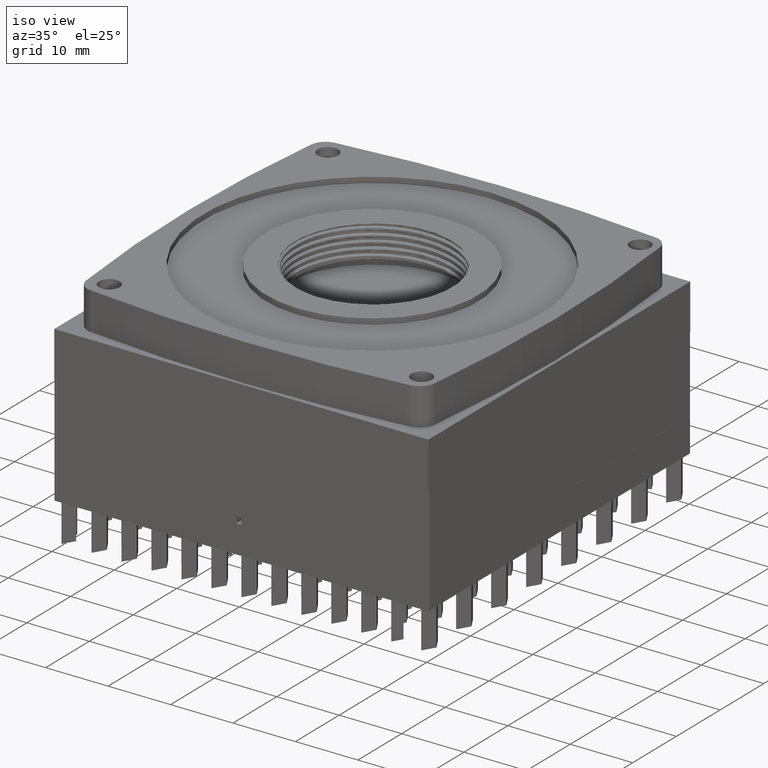
[diagram: clean part render]
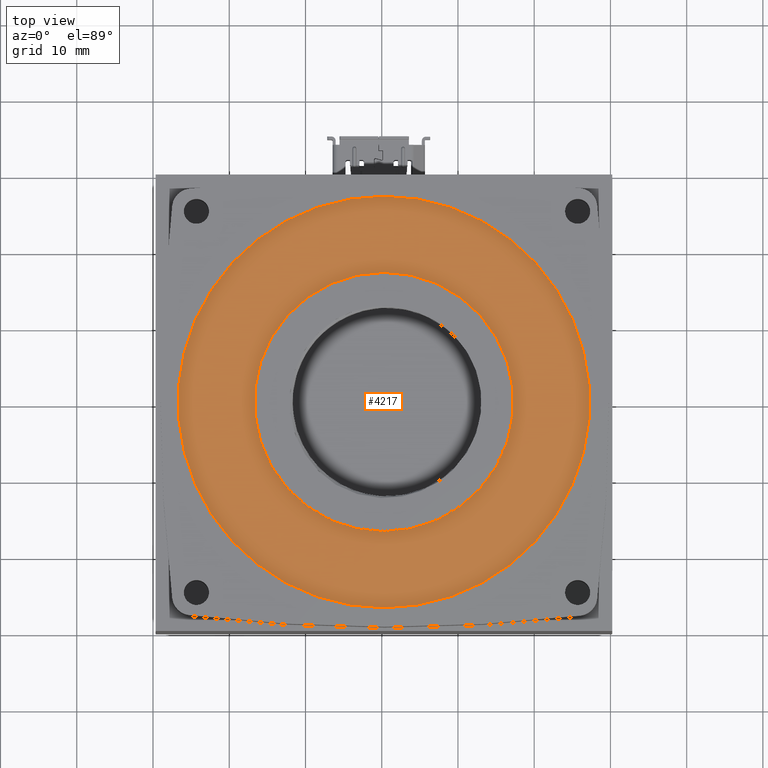
[diagram: tour spotlight — one face highlighted and labeled with its STEP entity id]
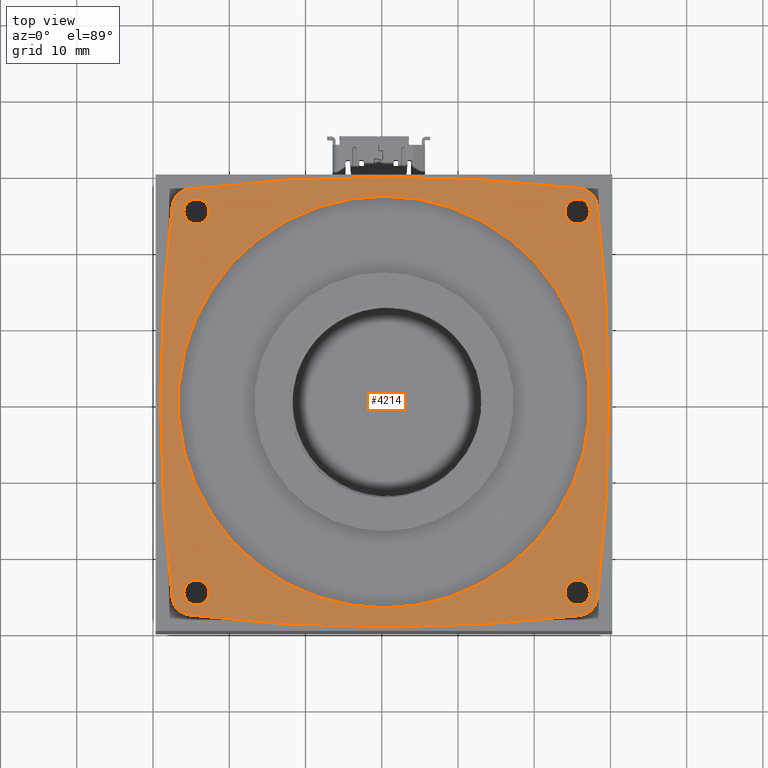
[diagram: tour spotlight — one face highlighted and labeled with its STEP entity id]
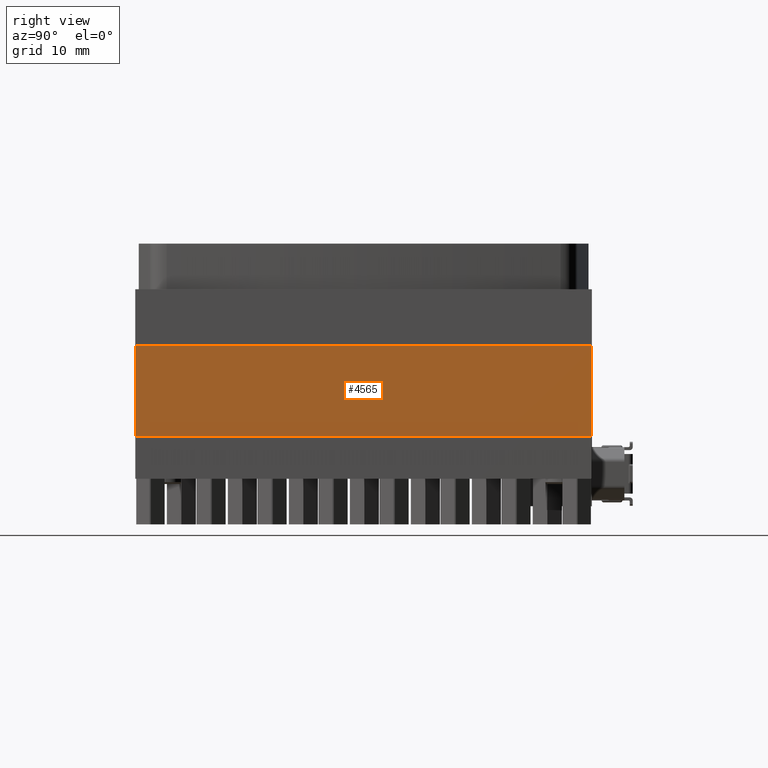
[diagram: tour spotlight — one face highlighted and labeled with its STEP entity id]
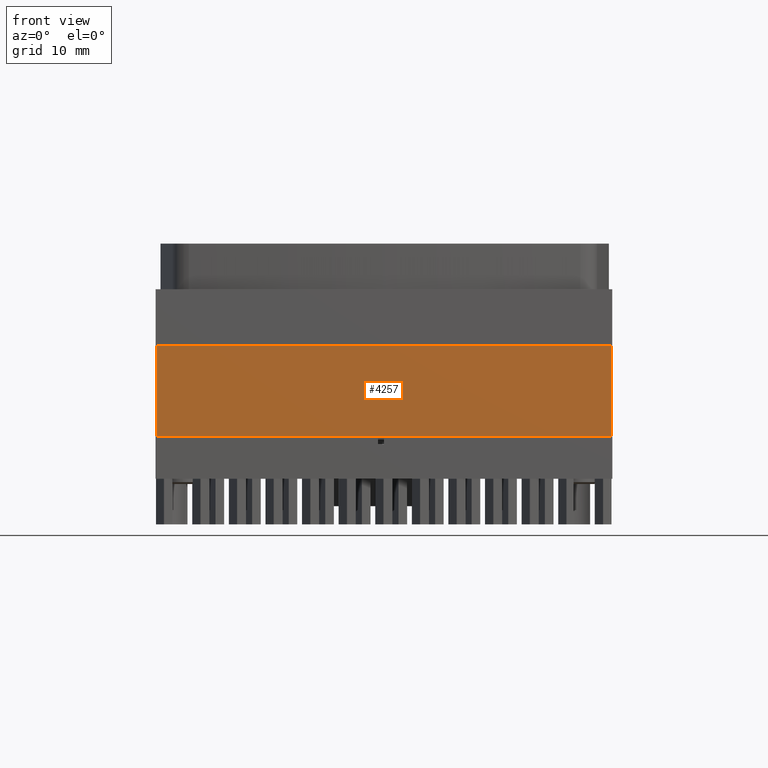
[diagram: tour spotlight — one face highlighted and labeled with its STEP entity id]
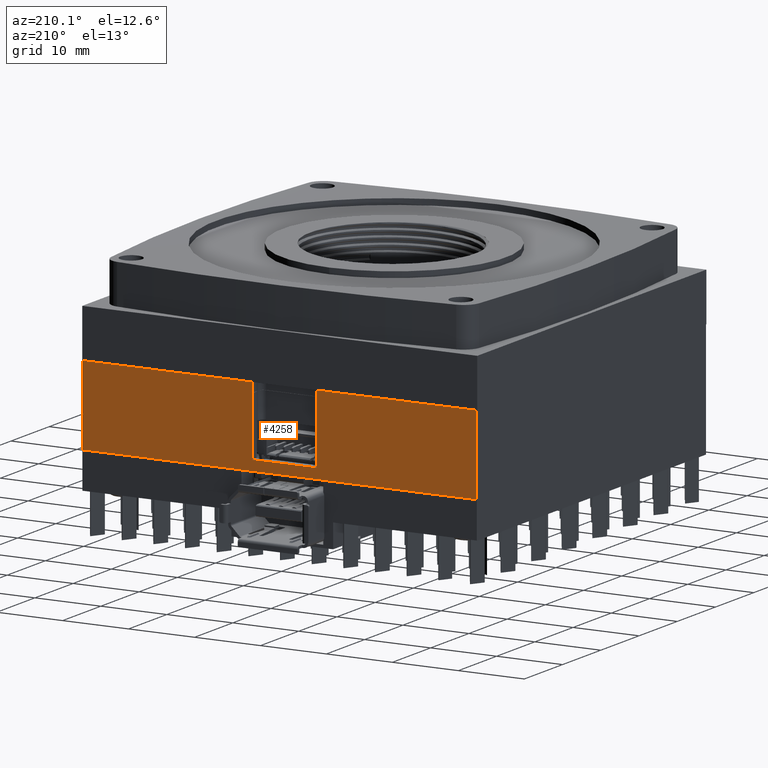
[diagram: tour spotlight — one face highlighted and labeled with its STEP entity id]
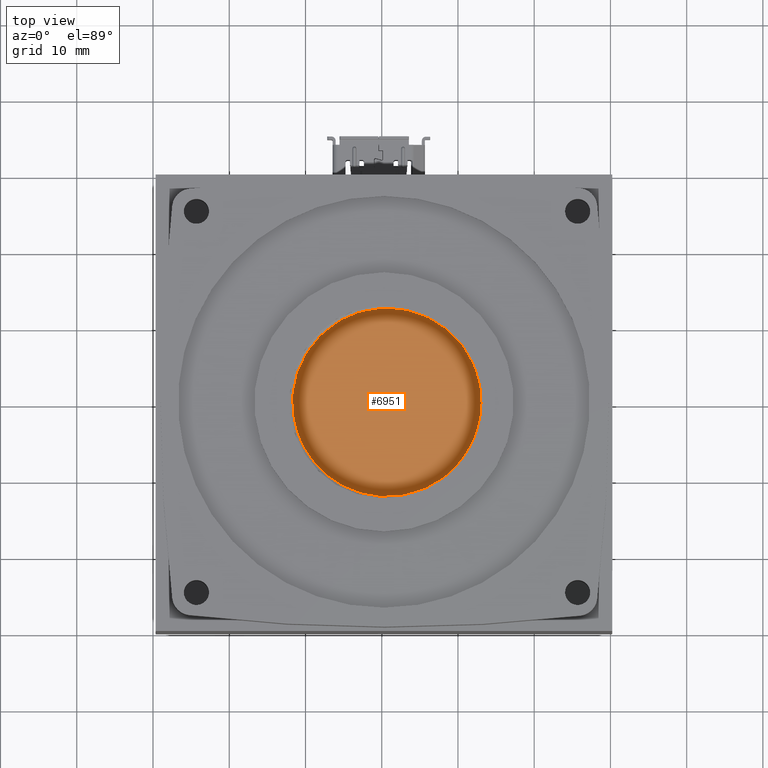
[diagram: tour spotlight — one face highlighted and labeled with its STEP entity id]
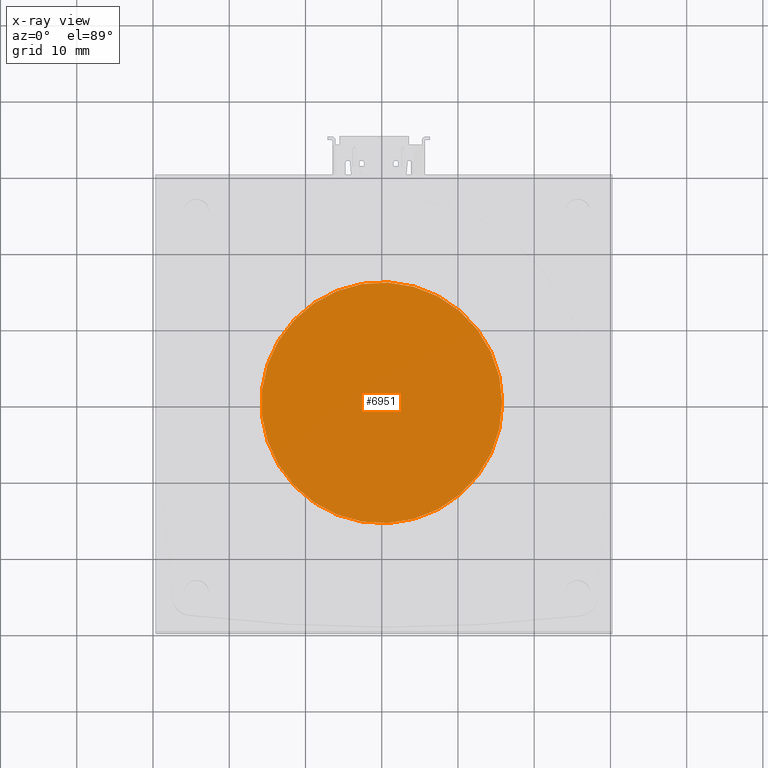
[diagram: x-ray of the same camera — body ghosted, this tour face saturated]
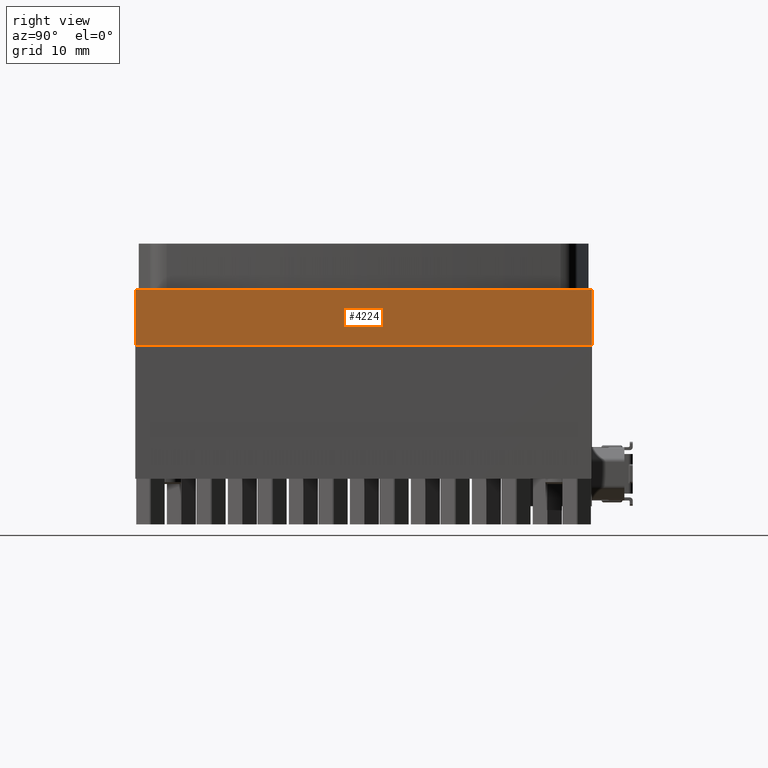
[diagram: tour spotlight — one face highlighted and labeled with its STEP entity id]
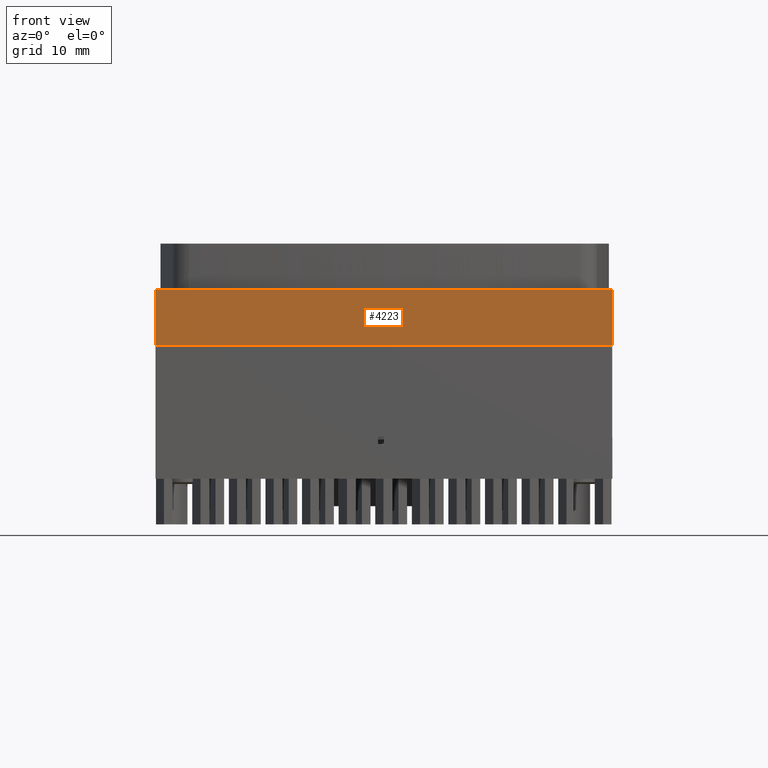
[diagram: tour spotlight — one face highlighted and labeled with its STEP entity id]
A machine part: a face-by-face anatomy tour. The part has 2904 B-rep faces; the first image is the clean iso view, then the 8 largest visible faces are spotlighted one at a time (largest first), each with its STEP entity span.

Face 1 — top view, entity #4217. In plain terms, the highlighted planar face has unit normal (0, 0, 1).
Definition (entity closure, byte-faithful):
#944=PLANE('',#51820);
#3200=FACE_BOUND('',#9874,.T.);
#3201=FACE_BOUND('',#9875,.T.);
#4217=ADVANCED_FACE('',(#3200,#3201),#944,.T.);
#9874=EDGE_LOOP('',(#25207));
#9875=EDGE_LOOP('',(#25208));
#25207=ORIENTED_EDGE('',*,*,#43848,.F.);
#25208=ORIENTED_EDGE('',*,*,#43849,.T.);
#39129=VERTEX_POINT('',#69228);
#39130=VERTEX_POINT('',#69231);
#43848=EDGE_CURVE('',#39129,#39129,#50804,.T.);
#43849=EDGE_CURVE('',#39130,#39130,#50805,.T.);
#50804=CIRCLE('',#51815,27.);
#50805=CIRCLE('',#51817,17.);
#51815=AXIS2_PLACEMENT_3D('',#69227,#55618,#55619);
#51817=AXIS2_PLACEMENT_3D('',#69230,#55622,#55623);
#51820=AXIS2_PLACEMENT_3D('',#69235,#55628,#55629);
#55618=DIRECTION('',(0.,0.,1.));
#55619=DIRECTION('',(1.28498035257541E-016,-1.,0.));
#55622=DIRECTION('',(0.,0.,1.));
#55623=DIRECTION('',(2.04085114820801E-016,-1.,0.));
#55628=DIRECTION('',(0.,0.,-1.));
#55629=DIRECTION('',(-1.,0.,0.));
#69227=CARTESIAN_POINT('',(30.00005,30.,-5.1));
#69228=CARTESIAN_POINT('',(30.00005,3.,-5.1));
#69230=CARTESIAN_POINT('',(30.00005,30.,-5.1));
#69231=CARTESIAN_POINT('',(30.00005,13.,-5.1));
#69235=CARTESIAN_POINT('',(30.39645,30.,-5.1));

Face 2 — top view, entity #4214. In plain terms, the highlighted planar face has unit normal (0, 0, 1).
Definition (entity closure, byte-faithful):
#943=PLANE('',#51814);
#3190=FACE_BOUND('',#9864,.T.);
#3191=FACE_BOUND('',#9865,.T.);
#3192=FACE_BOUND('',#9866,.T.);
#3193=FACE_BOUND('',#9867,.T.);
#3194=FACE_BOUND('',#9868,.T.);
#3195=FACE_BOUND('',#9869,.T.);
#4214=ADVANCED_FACE('',(#3190,#3191,#3192,#3193,#3194,#3195),#943,.T.);
#9864=EDGE_LOOP('',(#25190));
#9865=EDGE_LOOP('',(#25191));
#9866=EDGE_LOOP('',(#25192));
#9867=EDGE_LOOP('',(#25193));
#9868=EDGE_LOOP('',(#25194));
#9869=EDGE_LOOP('',(#25195,#25196,#25197,#25198,#25199,#25200,#25201,#25202));
#25190=ORIENTED_EDGE('',*,*,#43839,.T.);
#25191=ORIENTED_EDGE('',*,*,#43840,.T.);
#25192=ORIENTED_EDGE('',*,*,#43841,.T.);
#25193=ORIENTED_EDGE('',*,*,#43842,.T.);
#25194=ORIENTED_EDGE('',*,*,#43843,.F.);
#25195=ORIENTED_EDGE('',*,*,#43833,.T.);
#25196=ORIENTED_EDGE('',*,*,#43844,.T.);
#25197=ORIENTED_EDGE('',*,*,#43835,.T.);
#25198=ORIENTED_EDGE('',*,*,#43845,.T.);
#25199=ORIENTED_EDGE('',*,*,#43825,.T.);
#25200=ORIENTED_EDGE('',*,*,#43846,.T.);
#25201=ORIENTED_EDGE('',*,*,#43829,.T.);
#25202=ORIENTED_EDGE('',*,*,#43847,.T.);
#39110=VERTEX_POINT('',#69180);
#39111=VERTEX_POINT('',#69182);
#39114=VERTEX_POINT('',#69189);
#39115=VERTEX_POINT('',#69191);
#39118=VERTEX_POINT('',#69198);
#39119=VERTEX_POINT('',#69200);
#39120=VERTEX_POINT('',#69204);
#39121=VERTEX_POINT('',#69205);
#39124=VERTEX_POINT('',#69213);
#39125=VERTEX_POINT('',#69215);
#39126=VERTEX_POINT('',#69217);
#39127=VERTEX_POINT('',#69219);
#39128=VERTEX_POINT('',#69221);
#43825=EDGE_CURVE('',#39111,#39110,#50788,.T.);
#43829=EDGE_CURVE('',#39115,#39114,#50790,.T.);
#43833=EDGE_CURVE('',#39119,#39118,#50792,.T.);
#43835=EDGE_CURVE('',#39120,#39121,#50793,.T.);
#43839=EDGE_CURVE('',#39124,#39124,#50795,.T.);
#43840=EDGE_CURVE('',#39125,#39125,#50796,.T.);
#43841=EDGE_CURVE('',#39126,#39126,#50797,.T.);
#43842=EDGE_CURVE('',#39127,#39127,#50798,.T.);
#43843=EDGE_CURVE('',#39128,#39128,#50799,.T.);
#43844=EDGE_CURVE('',#39118,#39120,#50800,.T.);
#43845=EDGE_CURVE('',#39121,#39111,#50801,.T.);
#43846=EDGE_CURVE('',#39110,#39115,#50802,.T.);
#43847=EDGE_CURVE('',#39114,#39119,#50803,.T.);
#50788=CIRCLE('',#51794,218.000000000286);
#50790=CIRCLE('',#51797,218.);
#50792=CIRCLE('',#51800,218.00000000028);
#50793=CIRCLE('',#51802,218.);
#50795=CIRCLE('',#51805,1.65);
#50796=CIRCLE('',#51806,1.65);
#50797=CIRCLE('',#51807,1.65);
#50798=CIRCLE('',#51808,1.65);
#50799=CIRCLE('',#51809,27.);
#50800=CIRCLE('',#51810,2.5);
#50801=CIRCLE('',#51811,2.5);
#50802=CIRCLE('',#51812,2.5);
#50803=CIRCLE('',#51813,2.5);
#51794=AXIS2_PLACEMENT_3D('',#69181,#55569,#55570);
#51797=AXIS2_PLACEMENT_3D('',#69190,#55577,#55578);
#51800=AXIS2_PLACEMENT_3D('',#69199,#55585,#55586);
#51802=AXIS2_PLACEMENT_3D('',#69203,#55590,#55591);
#51805=AXIS2_PLACEMENT_3D('',#69212,#55598,#55599);
#51806=AXIS2_PLACEMENT_3D('',#69214,#55600,#55601);
#51807=AXIS2_PLACEMENT_3D('',#69216,#55602,#55603);
#51808=AXIS2_PLACEMENT_3D('',#69218,#55604,#55605);
#51809=AXIS2_PLACEMENT_3D('',#69220,#55606,#55607);
#51810=AXIS2_PLACEMENT_3D('',#69222,#55608,#55609);
#51811=AXIS2_PLACEMENT_3D('',#69223,#55610,#55611);
#51812=AXIS2_PLACEMENT_3D('',#69224,#55612,#55613);
#51813=AXIS2_PLACEMENT_3D('',#69225,#55614,#55615);
#51814=AXIS2_PLACEMENT_3D('',#69226,#55616,#55617);
#55569=DIRECTION('',(0.,0.,-1.));
#55570=DIRECTION('',(1.,1.27319154199965E-016,0.));
#55577=DIRECTION('',(0.,0.,-1.));
#55578=DIRECTION('',(1.,1.27319154200133E-016,0.));
#55585=DIRECTION('',(0.,0.,-1.));
#55586=DIRECTION('',(1.,1.27319154199969E-016,0.));
#55590=DIRECTION('',(0.,0.,-1.));
#55591=DIRECTION('',(1.,1.27319154200133E-016,0.));
#55598=DIRECTION('',(0.,0.,1.));
#55599=DIRECTION('',(0.999999999999999,0.,0.));
#55600=DIRECTION('',(0.,0.,1.));
#55601=DIRECTION('',(0.999999999999999,0.,0.));
#55602=DIRECTION('',(0.,0.,1.));
#55603=DIRECTION('',(1.,0.,0.));
#55604=DIRECTION('',(0.,0.,1.));
#55605=DIRECTION('',(1.,0.,0.));
#55606=DIRECTION('',(0.,0.,-1.));
#55607=DIRECTION('',(1.28498035257541E-016,-1.,0.));
#55608=DIRECTION('',(0.,0.,-1.));
#55609=DIRECTION('',(-1.,0.,0.));
#55610=DIRECTION('',(0.,0.,-1.));
#55611=DIRECTION('',(-1.,0.,0.));
#55612=DIRECTION('',(0.,0.,-1.));
#55613=DIRECTION('',(-1.,0.,0.));
#55614=DIRECTION('',(0.,0.,-1.));
#55615=DIRECTION('',(-1.,0.,0.));
#55616=DIRECTION('',(0.,0.,-1.));
#55617=DIRECTION('',(-1.,0.,0.));
#69180=CARTESIAN_POINT('',(2.22360144218384,55.758607054529,-6.));
#69181=CARTESIAN_POINT('',(218.69645,30.,-6.));
#69182=CARTESIAN_POINT('',(2.22360144218378,4.24139294547148,-6.));
#69189=CARTESIAN_POINT('',(55.7691802380963,58.0184162150439,-6.));
#69190=CARTESIAN_POINT('',(30.3964500000581,-158.499999999993,-6.));
#69191=CARTESIAN_POINT('',(4.40805619856042,57.9453819965247,-6.));
#69198=CARTESIAN_POINT('',(57.9605955513206,4.16835872696648,-6.));
#69199=CARTESIAN_POINT('',(-158.50355,30.0000000000001,-6.));
#69200=CARTESIAN_POINT('',(57.9605955513188,55.8316412730482,-6.));
#69203=CARTESIAN_POINT('',(30.39645,218.5,-6.));
#69204=CARTESIAN_POINT('',(55.7691802380987,1.98158378497068,-6.));
#69205=CARTESIAN_POINT('',(4.40805619856098,2.05461800347573,-6.));
#69212=CARTESIAN_POINT('',(55.39645,55.,-6.));
#69213=CARTESIAN_POINT('',(57.04645,55.,-6.));
#69214=CARTESIAN_POINT('',(55.39645,5.,-6.));
#69215=CARTESIAN_POINT('',(57.04645,5.,-6.));
#69216=CARTESIAN_POINT('',(5.39645,55.,-6.));
#69217=CARTESIAN_POINT('',(7.04645,55.,-6.));
#69218=CARTESIAN_POINT('',(5.39645,5.,-6.));
#69219=CARTESIAN_POINT('',(7.04645,5.,-6.));
#69220=CARTESIAN_POINT('',(30.00005,30.,-6.));
#69221=CARTESIAN_POINT('',(30.00005,3.,-6.));
#69222=CARTESIAN_POINT('',(55.4782085610563,4.46459314523484,-6.));
#69223=CARTESIAN_POINT('',(4.70608823756831,4.53678981536247,-6.));
#69224=CARTESIAN_POINT('',(4.70608823756842,55.463210184638,-6.));
#69225=CARTESIAN_POINT('',(55.4782085610546,55.5354068547797,-6.));
#69226=CARTESIAN_POINT('',(124.646450000029,-64.2499999999964,-6.));

Face 3 — right view, entity #4565. In plain terms, the highlighted planar face has unit normal (1, 0, 0).
Definition (entity closure, byte-faithful):
#1091=PLANE('',#52547);
#4565=ADVANCED_FACE('',(#7623),#1091,.T.);
#7623=FACE_OUTER_BOUND('',#10422,.T.);
#10422=EDGE_LOOP('',(#26708,#26709,#26710,#26711));
#13709=LINE('',#71486,#19590);
#13710=LINE('',#71489,#19591);
#13711=LINE('',#71491,#19592);
#13712=LINE('',#71493,#19593);
#19590=VECTOR('',#57447,1.);
#19591=VECTOR('',#57448,1.);
#19592=VECTOR('',#57449,1.);
#19593=VECTOR('',#57450,1.);
#26708=ORIENTED_EDGE('',*,*,#44612,.T.);
#26709=ORIENTED_EDGE('',*,*,#44613,.T.);
#26710=ORIENTED_EDGE('',*,*,#44614,.F.);
#26711=ORIENTED_EDGE('',*,*,#44615,.T.);
#39691=VERTEX_POINT('',#71487);
#39692=VERTEX_POINT('',#71488);
#39693=VERTEX_POINT('',#71490);
#39694=VERTEX_POINT('',#71492);
#44612=EDGE_CURVE('',#39691,#39692,#13709,.T.);
#44613=EDGE_CURVE('',#39692,#39693,#13710,.T.);
#44614=EDGE_CURVE('',#39694,#39693,#13711,.T.);
#44615=EDGE_CURVE('',#39694,#39691,#13712,.T.);
#52547=AXIS2_PLACEMENT_3D('',#71494,#57451,#57452);
#57447=DIRECTION('',(0.,1.,0.));
#57448=DIRECTION('',(0.,0.,1.));
#57449=DIRECTION('',(0.,1.,0.));
#57450=DIRECTION('',(0.,0.,-1.));
#57451=DIRECTION('',(1.,0.,0.));
#57452=DIRECTION('',(0.,0.,-1.));
#71486=CARTESIAN_POINT('',(30.6416433614476,16.5978008972884,0.));
#71487=CARTESIAN_POINT('',(30.6416433614476,-29.85,0.));
#71488=CARTESIAN_POINT('',(30.6416433614476,29.85,0.));
#71489=CARTESIAN_POINT('',(30.6416433614476,29.85,12.));
#71490=CARTESIAN_POINT('',(30.6416433614476,29.85,12.));
#71491=CARTESIAN_POINT('',(30.6416433614476,16.5978008972884,12.));
#71492=CARTESIAN_POINT('',(30.6416433614476,-29.85,12.));
#71493=CARTESIAN_POINT('',(30.6416433614476,-29.85,0.));
#71494=CARTESIAN_POINT('',(30.6416433614476,16.5978008972884,12.));

Face 4 — front view, entity #4257. In plain terms, the highlighted planar face has unit normal (0, -1, 0).
Definition (entity closure, byte-faithful):
#965=PLANE('',#51883);
#4257=ADVANCED_FACE('',(#7419),#965,.T.);
#7419=FACE_OUTER_BOUND('',#9938,.T.);
#9938=EDGE_LOOP('',(#25327,#25328,#25329,#25330));
#13358=LINE('',#69901,#19239);
#13359=LINE('',#69904,#19240);
#13360=LINE('',#69906,#19241);
#13361=LINE('',#69908,#19242);
#19239=VECTOR('',#55768,1.);
#19240=VECTOR('',#55769,1.);
#19241=VECTOR('',#55770,1.);
#19242=VECTOR('',#55771,1.);
#25327=ORIENTED_EDGE('',*,*,#43897,.T.);
#25328=ORIENTED_EDGE('',*,*,#43898,.T.);
#25329=ORIENTED_EDGE('',*,*,#43899,.F.);
#25330=ORIENTED_EDGE('',*,*,#43900,.T.);
#39165=VERTEX_POINT('',#69902);
#39166=VERTEX_POINT('',#69903);
#39167=VERTEX_POINT('',#69905);
#39168=VERTEX_POINT('',#69907);
#43897=EDGE_CURVE('',#39165,#39166,#13358,.T.);
#43898=EDGE_CURVE('',#39166,#39167,#13359,.T.);
#43899=EDGE_CURVE('',#39168,#39167,#13360,.T.);
#43900=EDGE_CURVE('',#39168,#39165,#13361,.T.);
#51883=AXIS2_PLACEMENT_3D('',#69909,#55772,#55773);
#55768=DIRECTION('',(1.,0.,0.));
#55769=DIRECTION('',(0.,0.,-1.));
#55770=DIRECTION('',(1.,0.,0.));
#55771=DIRECTION('',(0.,0.,1.));
#55772=DIRECTION('',(0.,1.,0.));
#55773=DIRECTION('',(0.,0.,1.));
#69901=CARTESIAN_POINT('',(2.0234080286262,29.95,12.));
#69902=CARTESIAN_POINT('',(-29.1583717983092,29.95,12.));
#69903=CARTESIAN_POINT('',(30.5416433614476,29.95,12.));
#69904=CARTESIAN_POINT('',(30.5416433614476,29.95,12.));
#69905=CARTESIAN_POINT('',(30.5416433614476,29.95,0.));
#69906=CARTESIAN_POINT('',(2.0234080286262,29.95,0.));
#69907=CARTESIAN_POINT('',(-29.1583717983092,29.95,0.));
#69908=CARTESIAN_POINT('',(-29.1583717983092,29.95,12.));
#69909=CARTESIAN_POINT('',(2.0234080286262,29.95,12.));

Face 5 — auxiliary view, entity #4258. In plain terms, the highlighted planar face has unit normal (0, -1, 0).
Definition (entity closure, byte-faithful):
#966=PLANE('',#51884);
#4258=ADVANCED_FACE('',(#7420),#966,.F.);
#7420=FACE_OUTER_BOUND('',#9939,.T.);
#9939=EDGE_LOOP('',(#25331,#25332,#25333,#25334,#25335,#25336,#25337,#25338,
#25339,#25340,#25341,#25342));
#13362=LINE('',#69910,#19243);
#13363=LINE('',#69913,#19244);
#13364=LINE('',#69915,#19245);
#13365=LINE('',#69917,#19246);
#13366=LINE('',#69919,#19247);
#13367=LINE('',#69921,#19248);
#13368=LINE('',#69923,#19249);
#13369=LINE('',#69925,#19250);
#13370=LINE('',#69927,#19251);
#13371=LINE('',#69929,#19252);
#13372=LINE('',#69931,#19253);
#13373=LINE('',#69933,#19254);
#19243=VECTOR('',#55774,1.);
#19244=VECTOR('',#55775,1.);
#19245=VECTOR('',#55776,1.);
#19246=VECTOR('',#55777,1.);
#19247=VECTOR('',#55778,1.);
#19248=VECTOR('',#55779,1.);
#19249=VECTOR('',#55780,1.);
#19250=VECTOR('',#55781,1.);
#19251=VECTOR('',#55782,1.);
#19252=VECTOR('',#55783,1.);
#19253=VECTOR('',#55784,1.);
#19254=VECTOR('',#55785,1.);
#25331=ORIENTED_EDGE('',*,*,#43901,.T.);
#25332=ORIENTED_EDGE('',*,*,#43902,.T.);
#25333=ORIENTED_EDGE('',*,*,#43903,.F.);
#25334=ORIENTED_EDGE('',*,*,#43904,.T.);
#25335=ORIENTED_EDGE('',*,*,#43905,.T.);
#25336=ORIENTED_EDGE('',*,*,#43906,.F.);
#25337=ORIENTED_EDGE('',*,*,#43907,.F.);
#25338=ORIENTED_EDGE('',*,*,#43908,.F.);
#25339=ORIENTED_EDGE('',*,*,#43909,.F.);
#25340=ORIENTED_EDGE('',*,*,#43910,.T.);
#25341=ORIENTED_EDGE('',*,*,#43911,.F.);
#25342=ORIENTED_EDGE('',*,*,#43912,.T.);
#39169=VERTEX_POINT('',#69911);
#39170=VERTEX_POINT('',#69912);
#39171=VERTEX_POINT('',#69914);
#39172=VERTEX_POINT('',#69916);
#39173=VERTEX_POINT('',#69918);
#39174=VERTEX_POINT('',#69920);
#39175=VERTEX_POINT('',#69922);
#39176=VERTEX_POINT('',#69924);
#39177=VERTEX_POINT('',#69926);
#39178=VERTEX_POINT('',#69928);
#39179=VERTEX_POINT('',#69930);
#39180=VERTEX_POINT('',#69932);
#43901=EDGE_CURVE('',#39169,#39170,#13362,.T.);
#43902=EDGE_CURVE('',#39170,#39171,#13363,.T.);
#43903=EDGE_CURVE('',#39172,#39171,#13364,.T.);
#43904=EDGE_CURVE('',#39172,#39173,#13365,.T.);
#43905=EDGE_CURVE('',#39173,#39174,#13366,.T.);
#43906=EDGE_CURVE('',#39175,#39174,#13367,.T.);
#43907=EDGE_CURVE('',#39176,#39175,#13368,.T.);
#43908=EDGE_CURVE('',#39177,#39176,#13369,.T.);
#43909=EDGE_CURVE('',#39178,#39177,#13370,.T.);
#43910=EDGE_CURVE('',#39178,#39179,#13371,.T.);
#43911=EDGE_CURVE('',#39180,#39179,#13372,.T.);
#43912=EDGE_CURVE('',#39180,#39169,#13373,.T.);
#51884=AXIS2_PLACEMENT_3D('',#69934,#55786,#55787);
#55774=DIRECTION('',(1.,0.,0.));
#55775=DIRECTION('',(0.,0.,1.));
#55776=DIRECTION('',(1.,0.,0.));
#55777=DIRECTION('',(0.,0.,-1.));
#55778=DIRECTION('',(1.,0.,0.));
#55779=DIRECTION('',(0.,0.,-1.));
#55780=DIRECTION('',(-1.,0.,0.));
#55781=DIRECTION('',(0.,0.,-1.));
#55782=DIRECTION('',(-1.,0.,0.));
#55783=DIRECTION('',(0.,0.,-1.));
#55784=DIRECTION('',(-1.,0.,0.));
#55785=DIRECTION('',(0.,0.,-1.));
#55786=DIRECTION('',(0.,1.,0.));
#55787=DIRECTION('',(0.,0.,1.));
#69910=CARTESIAN_POINT('',(2.0234080286262,-29.95,0.));
#69911=CARTESIAN_POINT('',(4.9,-29.95,0.));
#69912=CARTESIAN_POINT('',(30.5416433614476,-29.95,0.));
#69913=CARTESIAN_POINT('',(30.5416433614476,-29.95,12.));
#69914=CARTESIAN_POINT('',(30.5416433614476,-29.95,12.));
#69915=CARTESIAN_POINT('',(2.0234080286262,-29.95,12.));
#69916=CARTESIAN_POINT('',(-29.1583717983092,-29.95,12.));
#69917=CARTESIAN_POINT('',(-29.1583717983092,-29.95,0.));
#69918=CARTESIAN_POINT('',(-29.1583717983092,-29.95,0.));
#69919=CARTESIAN_POINT('',(2.0234080286262,-29.95,0.));
#69920=CARTESIAN_POINT('',(-4.9,-29.95,0.));
#69921=CARTESIAN_POINT('',(-4.9,-29.95,1.5));
#69922=CARTESIAN_POINT('',(-4.9,-29.95,1.5));
#69923=CARTESIAN_POINT('',(4.9,-29.95,1.5));
#69924=CARTESIAN_POINT('',(-4.85,-29.95,1.5));
#69925=CARTESIAN_POINT('',(-4.85,-29.95,10.44));
#69926=CARTESIAN_POINT('',(-4.85,-29.95,10.44));
#69927=CARTESIAN_POINT('',(4.85,-29.95,10.44));
#69928=CARTESIAN_POINT('',(4.85,-29.95,10.44));
#69929=CARTESIAN_POINT('',(4.85,-29.95,10.44));
#69930=CARTESIAN_POINT('',(4.85,-29.95,1.5));
#69931=CARTESIAN_POINT('',(4.9,-29.95,1.5));
#69932=CARTESIAN_POINT('',(4.9,-29.95,1.5));
#69933=CARTESIAN_POINT('',(4.9,-29.95,1.5));
#69934=CARTESIAN_POINT('',(2.0234080286262,-29.95,12.));

Face 6 — top view, entity #6951. An x-ray twin of the same camera follows (body ghosted, this face saturated) — the face is partly hidden behind the body. In plain terms, the highlighted planar face has unit normal (0, 0, 1).
Definition (entity closure, byte-faithful):
#3188=PLANE('',#55533);
#6951=ADVANCED_FACE('',(#9857),#3188,.T.);
#9857=FACE_OUTER_BOUND('',#13329,.T.);
#13329=EDGE_LOOP('',(#39097));
#39097=ORIENTED_EDGE('',*,*,#50783,.T.);
#43816=VERTEX_POINT('',#84972);
#50783=EDGE_CURVE('',#43816,#43816,#51787,.T.);
#51787=CIRCLE('',#55532,15.8);
#55532=AXIS2_PLACEMENT_3D('',#84971,#68926,#68927);
#55533=AXIS2_PLACEMENT_3D('',#84973,#68928,#68929);
#68926=DIRECTION('',(0.,0.,1.));
#68927=DIRECTION('',(1.,0.,0.));
#68928=DIRECTION('',(0.,0.,1.));
#68929=DIRECTION('',(1.,0.,0.));
#84971=CARTESIAN_POINT('',(0.,0.,1.));
#84972=CARTESIAN_POINT('',(15.8,0.,1.));
#84973=CARTESIAN_POINT('',(0.,0.,1.));

Face 7 — right view, entity #4224. In plain terms, the highlighted planar face has unit normal (1, 0, 0).
Definition (entity closure, byte-faithful):
#951=PLANE('',#51837);
#4224=ADVANCED_FACE('',(#7402),#951,.T.);
#7402=FACE_OUTER_BOUND('',#9889,.T.);
#9889=EDGE_LOOP('',(#25247,#25248,#25249,#25250));
#13344=LINE('',#69252,#19225);
#13349=LINE('',#69278,#19230);
#13352=LINE('',#69284,#19233);
#13355=LINE('',#69289,#19236);
#19225=VECTOR('',#55634,1.);
#19230=VECTOR('',#55659,1.);
#19233=VECTOR('',#55664,1.);
#19236=VECTOR('',#55671,1.);
#25247=ORIENTED_EDGE('',*,*,#43854,.T.);
#25248=ORIENTED_EDGE('',*,*,#43874,.T.);
#25249=ORIENTED_EDGE('',*,*,#43868,.T.);
#25250=ORIENTED_EDGE('',*,*,#43871,.F.);
#39134=VERTEX_POINT('',#69253);
#39135=VERTEX_POINT('',#69254);
#39143=VERTEX_POINT('',#69276);
#39145=VERTEX_POINT('',#69279);
#43854=EDGE_CURVE('',#39134,#39135,#13344,.T.);
#43868=EDGE_CURVE('',#39145,#39143,#13349,.T.);
#43871=EDGE_CURVE('',#39134,#39143,#13352,.T.);
#43874=EDGE_CURVE('',#39135,#39145,#13355,.T.);
#51837=AXIS2_PLACEMENT_3D('',#69291,#55674,#55675);
#55634=DIRECTION('',(0.,1.,0.));
#55659=DIRECTION('',(0.,-1.,0.));
#55664=DIRECTION('',(0.,0.,1.));
#55671=DIRECTION('',(0.,0.,1.));
#55674=DIRECTION('',(1.,0.,0.));
#55675=DIRECTION('',(0.,0.,-1.));
#69252=CARTESIAN_POINT('',(59.95,30.,0.));
#69253=CARTESIAN_POINT('',(59.95,0.05,0.));
#69254=CARTESIAN_POINT('',(59.95,59.95,0.));
#69276=CARTESIAN_POINT('',(59.95,0.05,7.34));
#69278=CARTESIAN_POINT('',(59.95,30.,7.34));
#69279=CARTESIAN_POINT('',(59.95,59.95,7.34));
#69284=CARTESIAN_POINT('',(59.95,0.05,0.));
#69289=CARTESIAN_POINT('',(59.95,59.95,0.));
#69291=CARTESIAN_POINT('',(59.95,30.,0.));

Face 8 — front view, entity #4223. In plain terms, the highlighted planar face has unit normal (0, -1, 0).
Definition (entity closure, byte-faithful):
#950=PLANE('',#51836);
#4223=ADVANCED_FACE('',(#7401),#950,.T.);
#7401=FACE_OUTER_BOUND('',#9888,.T.);
#9888=EDGE_LOOP('',(#25243,#25244,#25245,#25246));
#13347=LINE('',#69259,#19228);
#13350=LINE('',#69280,#19231);
#13354=LINE('',#69287,#19235);
#13355=LINE('',#69289,#19236);
#19228=VECTOR('',#55637,1.);
#19231=VECTOR('',#55660,1.);
#19235=VECTOR('',#55668,1.);
#19236=VECTOR('',#55671,1.);
#25243=ORIENTED_EDGE('',*,*,#43873,.T.);
#25244=ORIENTED_EDGE('',*,*,#43869,.T.);
#25245=ORIENTED_EDGE('',*,*,#43874,.F.);
#25246=ORIENTED_EDGE('',*,*,#43857,.T.);
#39135=VERTEX_POINT('',#69254);
#39137=VERTEX_POINT('',#69258);
#39145=VERTEX_POINT('',#69279);
#39146=VERTEX_POINT('',#69281);
#43857=EDGE_CURVE('',#39135,#39137,#13347,.T.);
#43869=EDGE_CURVE('',#39146,#39145,#13350,.T.);
#43873=EDGE_CURVE('',#39137,#39146,#13354,.T.);
#43874=EDGE_CURVE('',#39135,#39145,#13355,.T.);
#51836=AXIS2_PLACEMENT_3D('',#69290,#55672,#55673);
#55637=DIRECTION('',(-1.,0.,0.));
#55660=DIRECTION('',(1.,0.,0.));
#55668=DIRECTION('',(0.,0.,1.));
#55671=DIRECTION('',(0.,0.,1.));
#55672=DIRECTION('',(0.,1.,0.));
#55673=DIRECTION('',(0.,0.,1.));
#69254=CARTESIAN_POINT('',(59.95,59.95,0.));
#69258=CARTESIAN_POINT('',(0.05,59.95,0.));
#69259=CARTESIAN_POINT('',(30.,59.95,0.));
#69279=CARTESIAN_POINT('',(59.95,59.95,7.34));
#69280=CARTESIAN_POINT('',(30.,59.95,7.34));
#69281=CARTESIAN_POINT('',(0.05,59.95,7.34));
#69287=CARTESIAN_POINT('',(0.05,59.95,0.));
#69289=CARTESIAN_POINT('',(59.95,59.95,0.));
#69290=CARTESIAN_POINT('',(30.,59.95,0.));